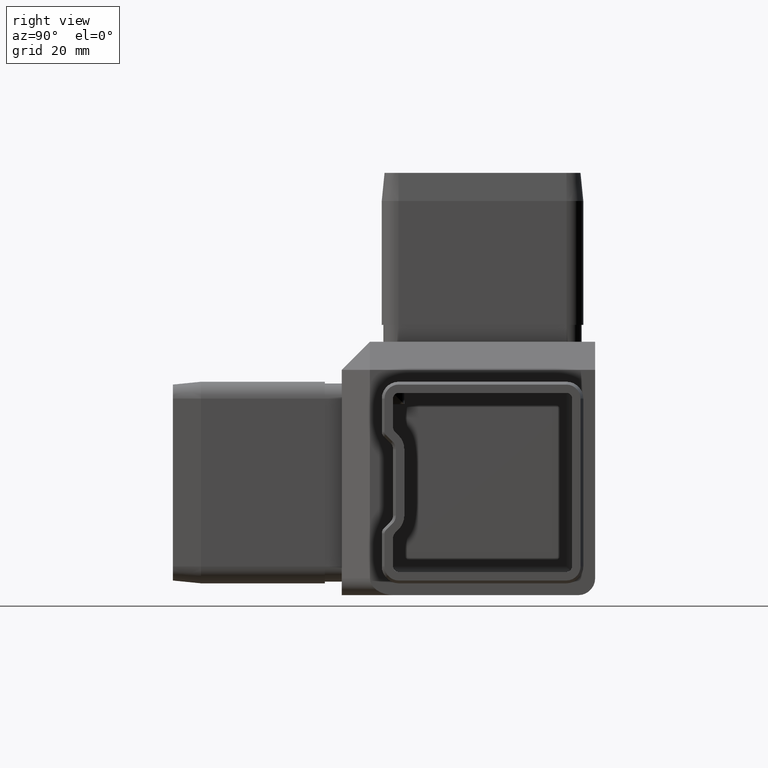
[diagram: clean part render]
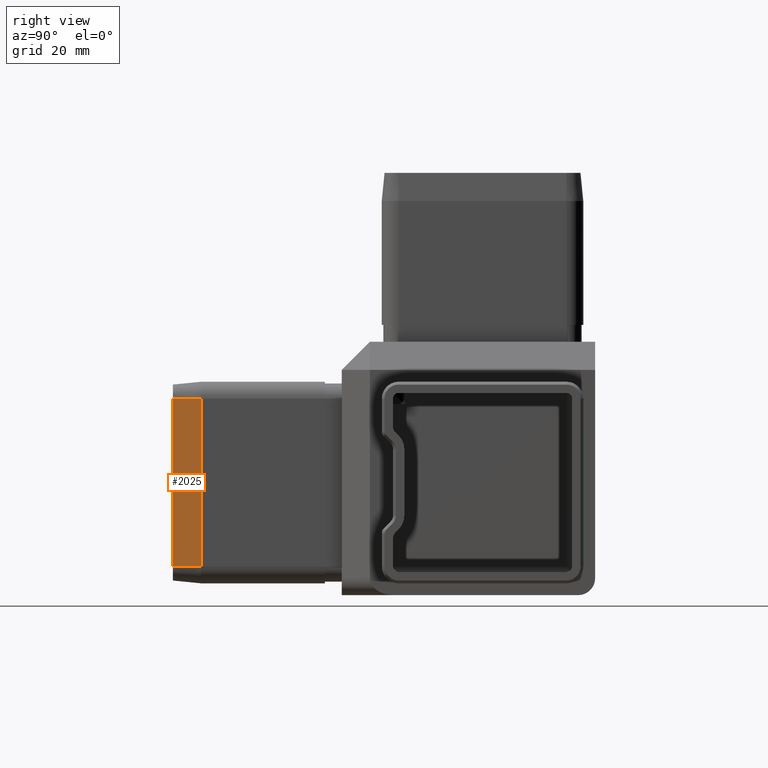
[diagram: same view with one face highlighted and labeled with its STEP entity id]
A machine part, right view. The second image highlights one B-rep face of the part: STEP entity #2025.
In plain terms, the highlighted planar face has unit normal (0.995, -0.0995, 0).
Its self-contained STEP definition (entity closure, byte-faithful):
#421 = DIRECTION ( 'NONE',  ( 2.328487887217191900E-016, 0.0000000000000000000, -1.000000000000000000 ) ) ;
#1080 = VECTOR ( 'NONE', #14648, 1000.000000000000100 ) ;
#1265 = VERTEX_POINT ( 'NONE', #15647 ) ;
#1293 = CARTESIAN_POINT ( 'NONE',  ( 15.40000000000000700, -47.50000000000000700, 12.40000000000000400 ) ) ;
#1946 = CARTESIAN_POINT ( 'NONE',  ( 15.40000000000000700, -47.50000000000000700, 12.40000000000000400 ) ) ;
#2025 = ADVANCED_FACE ( 'NONE', ( #7140 ), #17195, .T. ) ;
#2412 = CARTESIAN_POINT ( 'NONE',  ( 14.89999999999998600, -52.50000000000000700, 12.40000000000002000 ) ) ;
#3292 = EDGE_CURVE ( 'NONE', #1265, #5080, #5495, .T. ) ;
#3741 = VERTEX_POINT ( 'NONE', #15828 ) ;
#4216 = EDGE_CURVE ( 'NONE', #8662, #5080, #12014, .T. ) ;
#4379 = VECTOR ( 'NONE', #13758, 1000.000000000000000 ) ;
#5080 = VERTEX_POINT ( 'NONE', #7918 ) ;
#5241 = VECTOR ( 'NONE', #7974, 1000.000000000000100 ) ;
#5258 = ORIENTED_EDGE ( 'NONE', *, *, #12188, .F. ) ;
#5495 = LINE ( 'NONE', #2412, #4379 ) ;
#5606 = VECTOR ( 'NONE', #421, 1000.000000000000000 ) ;
#7140 = FACE_OUTER_BOUND ( 'NONE', #7501, .T. ) ;
#7501 = EDGE_LOOP ( 'NONE', ( #16318, #16597, #18745, #5258 ) ) ;
#7578 = CARTESIAN_POINT ( 'NONE',  ( 15.40000000000000700, -47.50000000000000700, 12.40000000000000400 ) ) ;
#7918 = CARTESIAN_POINT ( 'NONE',  ( 14.89999999999999300, -52.50000000000000700, -17.39999999999997000 ) ) ;
#7974 = DIRECTION ( 'NONE',  ( -0.09950371902100314800, -0.9950371902099887100, 2.599825115215698600E-015 ) ) ;
#8037 = CARTESIAN_POINT ( 'NONE',  ( 15.40000000000001500, -47.50000000000000700, -17.39999999999998400 ) ) ;
#8495 = CARTESIAN_POINT ( 'NONE',  ( 15.40000000000001500, -47.50000000000000700, -17.39999999999998400 ) ) ;
#8547 = LINE ( 'NONE', #1946, #5606 ) ;
#8662 = VERTEX_POINT ( 'NONE', #8495 ) ;
#9412 = LINE ( 'NONE', #7578, #1080 ) ;
#11272 = AXIS2_PLACEMENT_3D ( 'NONE', #1293, #11400, #15525 ) ;
#11400 = DIRECTION ( 'NONE',  ( 0.9950371902099887100, -0.09950371902100314800, 2.316932044734587500E-016 ) ) ;
#12014 = LINE ( 'NONE', #8037, #5241 ) ;
#12188 = EDGE_CURVE ( 'NONE', #3741, #8662, #8547, .T. ) ;
#12953 = EDGE_CURVE ( 'NONE', #3741, #1265, #9412, .T. ) ;
#13758 = DIRECTION ( 'NONE',  ( 2.328487887217191900E-016, 0.0000000000000000000, -1.000000000000000000 ) ) ;
#14648 = DIRECTION ( 'NONE',  ( -0.09950371902100314800, -0.9950371902099887100, 2.599825115215698600E-015 ) ) ;
#15525 = DIRECTION ( 'NONE',  ( 0.09950371902100314800, 0.9950371902099887100, 0.0000000000000000000 ) ) ;
#15647 = CARTESIAN_POINT ( 'NONE',  ( 14.89999999999998600, -52.50000000000000700, 12.40000000000002000 ) ) ;
#15828 = CARTESIAN_POINT ( 'NONE',  ( 15.40000000000000700, -47.50000000000000700, 12.40000000000000400 ) ) ;
#16318 = ORIENTED_EDGE ( 'NONE', *, *, #12953, .T. ) ;
#16597 = ORIENTED_EDGE ( 'NONE', *, *, #3292, .T. ) ;
#17195 = PLANE ( 'NONE',  #11272 ) ;
#18745 = ORIENTED_EDGE ( 'NONE', *, *, #4216, .F. ) ;